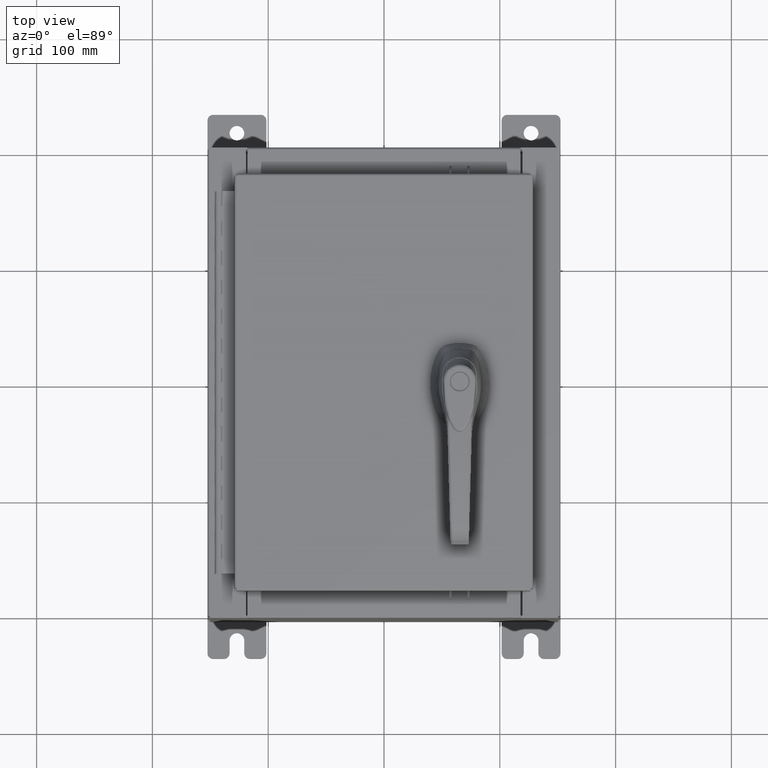
[diagram: clean part render]
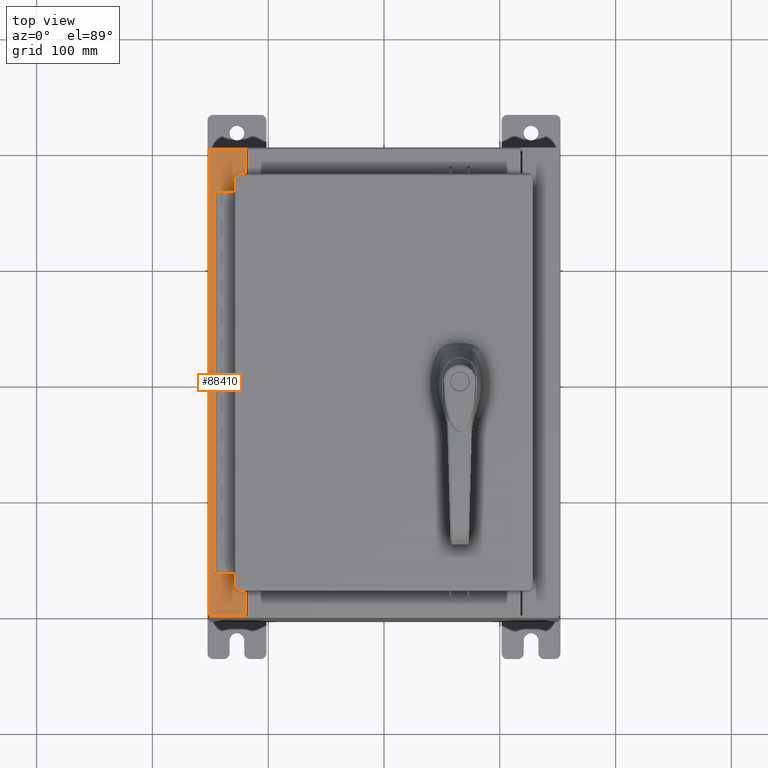
[diagram: same view with one face highlighted and labeled with its STEP entity id]
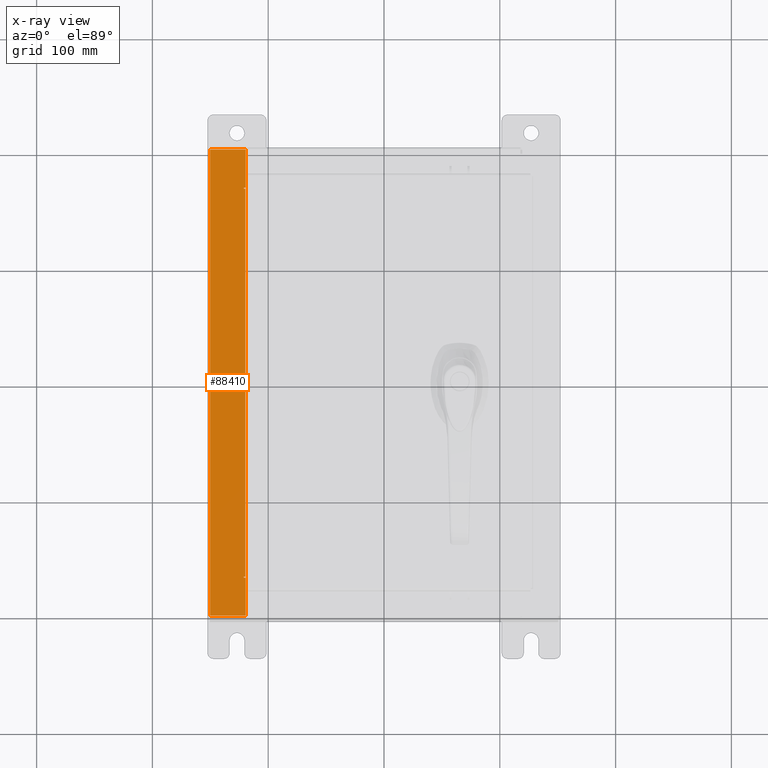
[diagram: x-ray of the same camera — body ghosted, the highlighted face saturated]
A machine part, top view. The second image highlights one B-rep face of the part: STEP entity #88410.
The next image is the same camera in x-ray: the body ghosted, the highlighted face saturated — about 0% of this face is hidden behind the body in this view.
In plain terms, the highlighted planar face has unit normal (0, 0, -1).
Its self-contained STEP definition (entity closure, byte-faithful):
#452 = PLANE ( 'NONE',  #95395 ) ;
#515 = VECTOR ( 'NONE', #49244, 39.37007874015748100 ) ;
#1848 = EDGE_CURVE ( 'NONE', #6807, #16808, #32809, .T. ) ;
#1963 = CARTESIAN_POINT ( 'NONE',  ( -4.712700000000030100, 6.593749999999999100, 7.925300000000008900 ) ) ;
#2816 = ORIENTED_EDGE ( 'NONE', *, *, #85513, .F. ) ;
#6807 = VERTEX_POINT ( 'NONE', #57691 ) ;
#7939 = CARTESIAN_POINT ( 'NONE',  ( -4.699700000000029300, -6.631099999999999100, 7.925300000000008900 ) ) ;
#8227 = CARTESIAN_POINT ( 'NONE',  ( -5.679009539018259300E-014, -7.925300000000000000, 7.925300000000042600 ) ) ;
#8290 = CARTESIAN_POINT ( 'NONE',  ( -5.679009539018259300E-014, 0.0000000000000000000, 7.925300000000042600 ) ) ;
#8649 = DIRECTION ( 'NONE',  ( 7.132762385546378400E-015, 0.0000000000000000000, -1.000000000000000000 ) ) ;
#10559 = VECTOR ( 'NONE', #15526, 39.37007874015748100 ) ;
#12295 = CARTESIAN_POINT ( 'NONE',  ( -5.912300000000028500, -7.925300000000000000, 7.925300000000000000 ) ) ;
#12678 = DIRECTION ( 'NONE',  ( 0.0000000000000000000, 1.000000000000000000, 0.0000000000000000000 ) ) ;
#13821 = EDGE_CURVE ( 'NONE', #16808, #33687, #96244, .T. ) ;
#15526 = DIRECTION ( 'NONE',  ( -0.0000000000000000000, -1.000000000000000000, -0.0000000000000000000 ) ) ;
#16808 = VERTEX_POINT ( 'NONE', #50287 ) ;
#20920 = EDGE_LOOP ( 'NONE', ( #2816, #31398, #89583, #26673, #78311, #37465, #32821, #77788, #88175, #82803, #56481, #24329 ) ) ;
#21847 = CARTESIAN_POINT ( 'NONE',  ( -4.750050000000030100, 6.593749999999999100, 7.925300000000008900 ) ) ;
#22161 = LINE ( 'NONE', #8227, #515 ) ;
#22717 = EDGE_CURVE ( 'NONE', #92126, #30383, #81288, .T. ) ;
#23773 = DIRECTION ( 'NONE',  ( 1.000000000000000000, 0.0000000000000000000, 0.0000000000000000000 ) ) ;
#24329 = ORIENTED_EDGE ( 'NONE', *, *, #1848, .F. ) ;
#26673 = ORIENTED_EDGE ( 'NONE', *, *, #80897, .F. ) ;
#27684 = VERTEX_POINT ( 'NONE', #7939 ) ;
#30025 = DIRECTION ( 'NONE',  ( 1.000000000000000000, 0.0000000000000000000, 0.0000000000000000000 ) ) ;
#30165 = CARTESIAN_POINT ( 'NONE',  ( -4.699700000000029300, 0.0000000000000000000, 7.925300000000008900 ) ) ;
#30383 = VERTEX_POINT ( 'NONE', #63477 ) ;
#31398 = ORIENTED_EDGE ( 'NONE', *, *, #22717, .T. ) ;
#32615 = CARTESIAN_POINT ( 'NONE',  ( -4.750050000000030100, -6.612424999999998200, 7.925300000000008900 ) ) ;
#32809 = CIRCLE ( 'NONE', #71895, 0.01867500000000003900 ) ;
#32821 = ORIENTED_EDGE ( 'NONE', *, *, #38324, .F. ) ;
#33687 = VERTEX_POINT ( 'NONE', #36944 ) ;
#33973 = CARTESIAN_POINT ( 'NONE',  ( -4.699700000000029300, -7.925300000000000000, 7.925300000000008900 ) ) ;
#36944 = CARTESIAN_POINT ( 'NONE',  ( -4.712700000000030100, 6.593749999999999100, 7.925300000000008900 ) ) ;
#37140 = VERTEX_POINT ( 'NONE', #86634 ) ;
#37465 = ORIENTED_EDGE ( 'NONE', *, *, #77829, .T. ) ;
#37728 = DIRECTION ( 'NONE',  ( -7.132762385546378400E-015, -0.0000000000000000000, 1.000000000000000000 ) ) ;
#38324 = EDGE_CURVE ( 'NONE', #66257, #27684, #68584, .T. ) ;
#39058 = CARTESIAN_POINT ( 'NONE',  ( -5.912300000000028500, 7.925299999999998200, 7.925300000000000000 ) ) ;
#40830 = DIRECTION ( 'NONE',  ( 1.000000000000000000, 0.0000000000000000000, 0.0000000000000000000 ) ) ;
#41183 = DIRECTION ( 'NONE',  ( -1.000000000000000000, 0.0000000000000000000, -7.132762385546378400E-015 ) ) ;
#41745 = CIRCLE ( 'NONE', #90412, 0.01867500000000003900 ) ;
#42448 = CARTESIAN_POINT ( 'NONE',  ( -4.750050000000030100, 6.612424999999998200, 7.925300000000008900 ) ) ;
#43786 = VERTEX_POINT ( 'NONE', #96342 ) ;
#44174 = CARTESIAN_POINT ( 'NONE',  ( -4.750050000000030100, -6.631099999999999100, 7.925300000000008900 ) ) ;
#45076 = EDGE_CURVE ( 'NONE', #43786, #59318, #58098, .T. ) ;
#49244 = DIRECTION ( 'NONE',  ( 1.000000000000000000, -0.0000000000000000000, 7.132762385546378400E-015 ) ) ;
#50287 = CARTESIAN_POINT ( 'NONE',  ( -4.750050000000030100, 6.593749999999999100, 7.925300000000008900 ) ) ;
#51077 = EDGE_CURVE ( 'NONE', #30383, #37140, #71538, .T. ) ;
#52250 = VERTEX_POINT ( 'NONE', #33973 ) ;
#53406 = CARTESIAN_POINT ( 'NONE',  ( -4.699700000000029300, 6.631099999999999100, 7.925300000000008900 ) ) ;
#53960 = DIRECTION ( 'NONE',  ( -1.000000000000000000, 0.0000000000000000000, 0.0000000000000000000 ) ) ;
#54012 = LINE ( 'NONE', #1963, #10559 ) ;
#54930 = VECTOR ( 'NONE', #41183, 39.37007874015748100 ) ;
#55964 = VECTOR ( 'NONE', #12678, 39.37007874015748100 ) ;
#56481 = ORIENTED_EDGE ( 'NONE', *, *, #13821, .F. ) ;
#56887 = LINE ( 'NONE', #39058, #78643 ) ;
#57590 = CARTESIAN_POINT ( 'NONE',  ( -4.699700000000029300, 0.0000000000000000000, 7.925300000000008900 ) ) ;
#57691 = CARTESIAN_POINT ( 'NONE',  ( -4.750050000000030100, 6.631099999999998200, 7.925300000000008900 ) ) ;
#58098 = LINE ( 'NONE', #94721, #99066 ) ;
#58510 = LINE ( 'NONE', #30165, #55964 ) ;
#58961 = CARTESIAN_POINT ( 'NONE',  ( -4.750050000000030100, -6.631099999999999100, 7.925300000000008900 ) ) ;
#59318 = VERTEX_POINT ( 'NONE', #102300 ) ;
#60945 = DIRECTION ( 'NONE',  ( -1.000000000000000000, 0.0000000000000000000, 0.0000000000000000000 ) ) ;
#63404 = LINE ( 'NONE', #69165, #104400 ) ;
#63477 = CARTESIAN_POINT ( 'NONE',  ( -4.699700000000029300, 7.925299999999998200, 7.925300000000008900 ) ) ;
#65756 = DIRECTION ( 'NONE',  ( -1.000000000000000000, 0.0000000000000000000, -7.132762385546378400E-015 ) ) ;
#66257 = VERTEX_POINT ( 'NONE', #44174 ) ;
#68584 = LINE ( 'NONE', #58961, #104427 ) ;
#69165 = CARTESIAN_POINT ( 'NONE',  ( -4.699700000000029300, 6.631099999999999100, 7.925300000000008900 ) ) ;
#70819 = FACE_OUTER_BOUND ( 'NONE', #20920, .T. ) ;
#71538 = LINE ( 'NONE', #89853, #54930 ) ;
#71895 = AXIS2_PLACEMENT_3D ( 'NONE', #42448, #37728, #23773 ) ;
#71898 = VECTOR ( 'NONE', #30025, 39.37007874015748100 ) ;
#75394 = DIRECTION ( 'NONE',  ( 1.000000000000000000, 0.0000000000000000000, 0.0000000000000000000 ) ) ;
#77788 = ORIENTED_EDGE ( 'NONE', *, *, #83170, .F. ) ;
#77829 = EDGE_CURVE ( 'NONE', #52250, #27684, #58510, .T. ) ;
#78311 = ORIENTED_EDGE ( 'NONE', *, *, #103750, .T. ) ;
#78643 = VECTOR ( 'NONE', #79900, 39.37007874015748100 ) ;
#78711 = VECTOR ( 'NONE', #90826, 39.37007874015748100 ) ;
#79900 = DIRECTION ( 'NONE',  ( -0.0000000000000000000, 1.000000000000000000, -0.0000000000000000000 ) ) ;
#80897 = EDGE_CURVE ( 'NONE', #95435, #37140, #56887, .T. ) ;
#81288 = LINE ( 'NONE', #57590, #78711 ) ;
#82803 = ORIENTED_EDGE ( 'NONE', *, *, #90243, .F. ) ;
#83170 = EDGE_CURVE ( 'NONE', #59318, #66257, #41745, .T. ) ;
#85513 = EDGE_CURVE ( 'NONE', #92126, #6807, #63404, .T. ) ;
#86634 = CARTESIAN_POINT ( 'NONE',  ( -5.912300000000028500, 7.925299999999998200, 7.925300000000000000 ) ) ;
#88175 = ORIENTED_EDGE ( 'NONE', *, *, #45076, .F. ) ;
#88410 = ADVANCED_FACE ( 'NONE', ( #70819 ), #452, .F. ) ;
#89583 = ORIENTED_EDGE ( 'NONE', *, *, #51077, .T. ) ;
#89853 = CARTESIAN_POINT ( 'NONE',  ( -5.679009539018259300E-014, 7.925299999999998200, 7.925300000000042600 ) ) ;
#89859 = DIRECTION ( 'NONE',  ( -7.132762385546378400E-015, -0.0000000000000000000, 1.000000000000000000 ) ) ;
#90243 = EDGE_CURVE ( 'NONE', #33687, #43786, #54012, .T. ) ;
#90412 = AXIS2_PLACEMENT_3D ( 'NONE', #32615, #89859, #40830 ) ;
#90826 = DIRECTION ( 'NONE',  ( 0.0000000000000000000, 1.000000000000000000, 0.0000000000000000000 ) ) ;
#92126 = VERTEX_POINT ( 'NONE', #53406 ) ;
#94721 = CARTESIAN_POINT ( 'NONE',  ( -4.712700000000030100, -6.593749999999999100, 7.925300000000008900 ) ) ;
#95395 = AXIS2_PLACEMENT_3D ( 'NONE', #8290, #8649, #65756 ) ;
#95435 = VERTEX_POINT ( 'NONE', #12295 ) ;
#96244 = LINE ( 'NONE', #21847, #71898 ) ;
#96342 = CARTESIAN_POINT ( 'NONE',  ( -4.712700000000030100, -6.593749999999999100, 7.925300000000008900 ) ) ;
#99066 = VECTOR ( 'NONE', #53960, 39.37007874015748100 ) ;
#102300 = CARTESIAN_POINT ( 'NONE',  ( -4.750050000000030100, -6.593749999999999100, 7.925300000000008900 ) ) ;
#103750 = EDGE_CURVE ( 'NONE', #95435, #52250, #22161, .T. ) ;
#104400 = VECTOR ( 'NONE', #60945, 39.37007874015748100 ) ;
#104427 = VECTOR ( 'NONE', #75394, 39.37007874015748100 ) ;